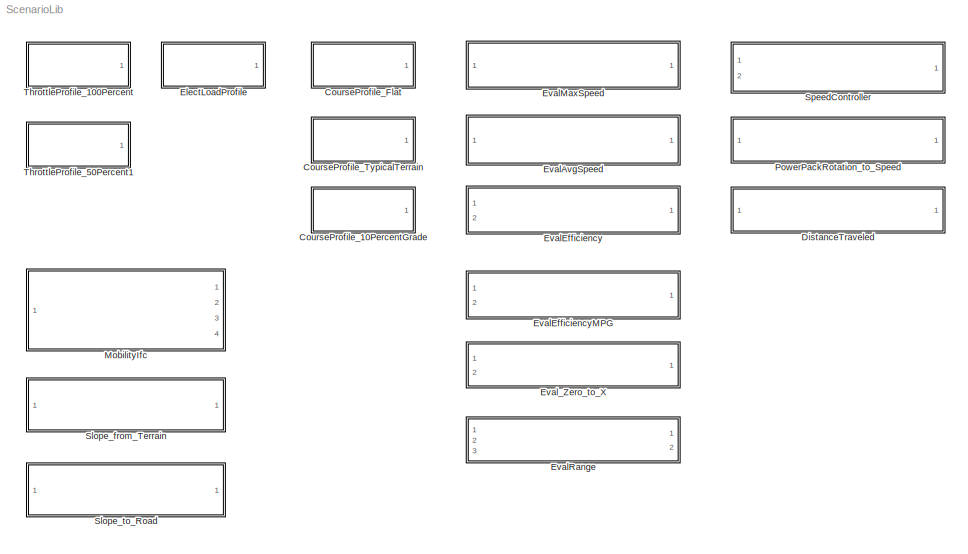
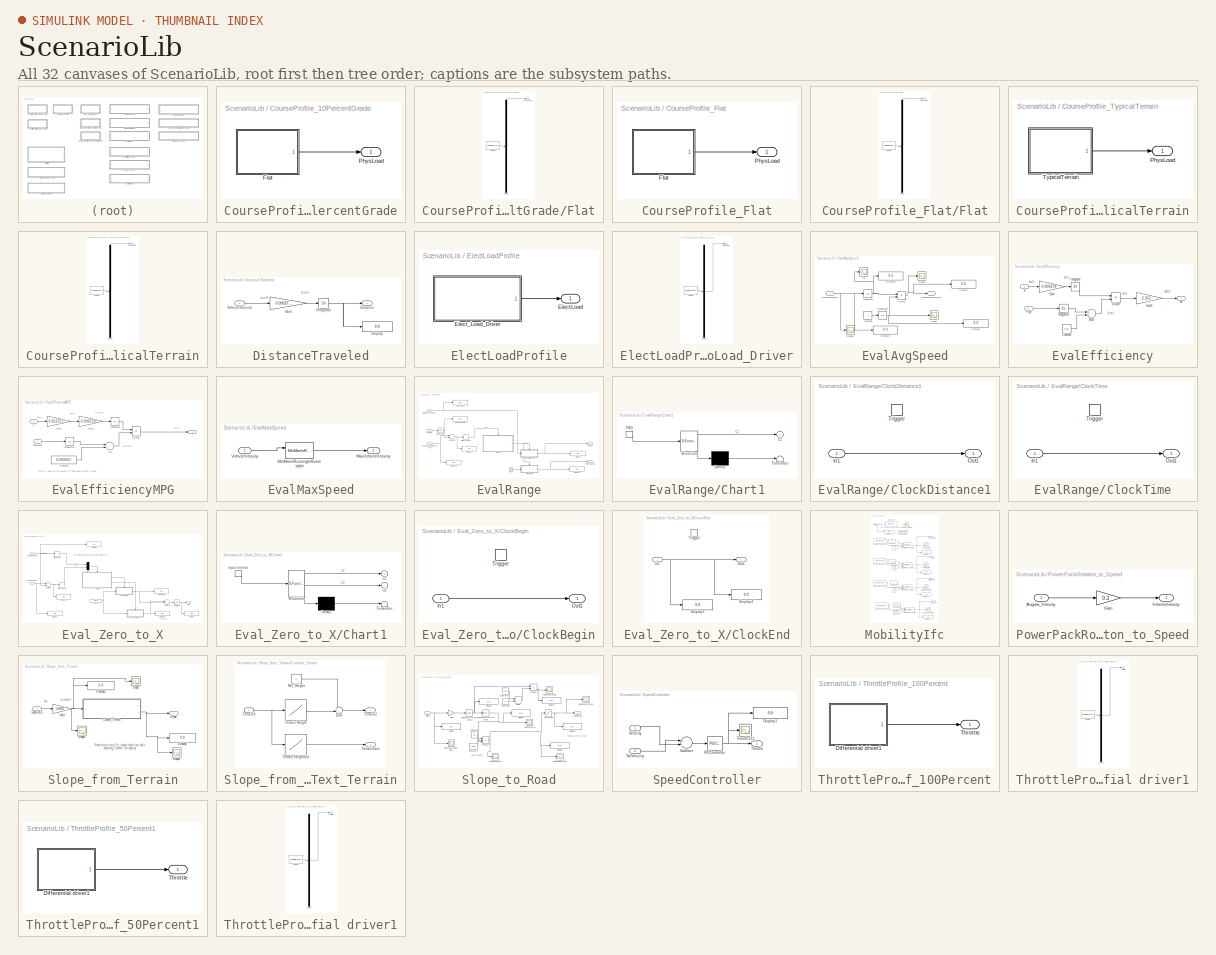
[diagram: thumbnail index - all 32 canvases of the model, root first then tree order]
MODEL ScenarioLib
KIND model
BLOCK [SubSystem] CourseProfile_10PercentGrade
  FunctionWithSeparateData = off
  MaskHideContents = off
  MinAlgLoopOccurrences = off
  Opaque = off
  Ports = [0, 1]
  PropExecContextOutsideSubsystem = off
  RTWSystemCode = Auto
  RequestExecContextInheritance = off
  SID = 457
BLOCK [SubSystem] CourseProfile_10PercentGrade/Flat
  ClipboardFcn = sigbuilder_block('clipboard');
  CloseFcn = sigbuilder_block('close');
  CopyFcn = sigbuilder_block('copy');
  DeleteFcn = sigbuilder_block('delete');
  FunctionWithSeparateData = off
  LoadFcn = sigbuilder_block('load');
  MaskCapabilities = slmaskedcaps(gcbh)
  MaskDescription = Create and generate interchangeable groups of signals whose waveforms are piecewise linear.
  MaskDisplay = plot(0,0,100,100,[10,10,40,40,10],[80,20,20,80,80],[40,10],[50,50], [40,27,10],[65,72,56],[40,25,25,10],[28,28,43,43]);
  MaskHideContents = on
  MaskIconFrame = on
  MaskIconOpaque = off
  MaskIconRotate = port
  MaskIconUnits = autoscale
  MaskInitialization = if ~strcmp(get_param(bdroot(gcbh),'SimulationStatus'),'stopped') tuvar = sigbuilder_block('maskInit'); end
  MaskPortRotate = default
  MaskSelfModifiable = on
  MaskType = Sigbuilder block
  MinAlgLoopOccurrences = off
  ModelCloseFcn = sigbuilder_block('modelClose');
  NameChangeFcn = sigbuilder_block('namechange');
  Opaque = off
  OpenFcn = sigbuilder_block('open',[62.6897 69.5172 970.759 504 ]);
  Ports = [0, 1]
  PreSaveFcn = sigbuilder_block('preSave');
  PropExecContextOutsideSubsystem = off
  RTWSystemCode = Auto
  RequestExecContextInheritance = off
  SID = 458
  StartFcn = sigbuilder_block('start');
  StopFcn = sigbuilder_block('stop');
  Tag = STV Subsys
BLOCK [Demux] CourseProfile_10PercentGrade/Flat/Demux
  Outputs = 1
  Ports = [1, 1]
  SID = 458:1
  Tag = STV Demux
BLOCK [FromWorkspace] CourseProfile_10PercentGrade/Flat/FromWs
  SID = 458:2
  SampleTime = 0
  SigBuilderData = DataTag0
  Tag = STV FromWs
  VariableName = tuvar
  VnvData = DataTag1
  ZeroCross = on
BLOCK [Outport] CourseProfile_10PercentGrade/Flat/PhysLoad
  IconDisplay = Port number
  SID = 458:5
  Tag = STV Outport
BLOCK [Outport] CourseProfile_10PercentGrade/PhysLoad
  IconDisplay = Port number
  SID = 459
BLOCK [SubSystem] CourseProfile_Flat
  FunctionWithSeparateData = off
  MaskHideContents = off
  MinAlgLoopOccurrences = off
  Opaque = off
  Ports = [0, 1]
  PropExecContextOutsideSubsystem = off
  RTWSystemCode = Auto
  RequestExecContextInheritance = off
  SID = 71
BLOCK [SubSystem] CourseProfile_Flat/Flat
  ClipboardFcn = sigbuilder_block('clipboard');
  CloseFcn = sigbuilder_block('close');
  CopyFcn = sigbuilder_block('copy');
  DeleteFcn = sigbuilder_block('delete');
  FunctionWithSeparateData = off
  LoadFcn = sigbuilder_block('load');
  MaskCapabilities = slmaskedcaps(gcbh)
  MaskDescription = Create and generate interchangeable groups of signals whose waveforms are piecewise linear.
  MaskDisplay = plot(0,0,100,100,[10,10,40,40,10],[80,20,20,80,80],[40,10],[50,50], [40,27,10],[65,72,56],[40,25,25,10],[28,28,43,43]);
  MaskHideContents = on
  MaskIconFrame = on
  MaskIconOpaque = off
  MaskIconRotate = port
  MaskIconUnits = autoscale
  MaskInitialization = if ~strcmp(get_param(bdroot(gcbh),'SimulationStatus'),'stopped') tuvar = sigbuilder_block('maskInit'); end
  MaskPortRotate = default
  MaskSelfModifiable = on
  MaskType = Sigbuilder block
  MinAlgLoopOccurrences = off
  ModelCloseFcn = sigbuilder_block('modelClose');
  NameChangeFcn = sigbuilder_block('namechange');
  Opaque = off
  OpenFcn = sigbuilder_block('open',[62.6897 69.5172 970.759 504 ]);
  Ports = [0, 1]
  PreSaveFcn = sigbuilder_block('preSave');
  PropExecContextOutsideSubsystem = off
  RTWSystemCode = Auto
  RequestExecContextInheritance = off
  SID = 108
  StartFcn = sigbuilder_block('start');
  StopFcn = sigbuilder_block('stop');
  Tag = STV Subsys
BLOCK [Demux] CourseProfile_Flat/Flat/Demux
  Outputs = 1
  Ports = [1, 1]
  SID = 108:1
  Tag = STV Demux
BLOCK [FromWorkspace] CourseProfile_Flat/Flat/FromWs
  SID = 108:2
  SampleTime = 0
  SigBuilderData = DataTag2
  Tag = STV FromWs
  VariableName = tuvar
  VnvData = DataTag3
  ZeroCross = on
BLOCK [Outport] CourseProfile_Flat/Flat/PhysLoad
  IconDisplay = Port number
  SID = 108:5
  Tag = STV Outport
BLOCK [Outport] CourseProfile_Flat/PhysLoad
  IconDisplay = Port number
  SID = 75
BLOCK [SubSystem] CourseProfile_TypicalTerrain
  FunctionWithSeparateData = off
  MaskHideContents = off
  MinAlgLoopOccurrences = off
  Opaque = off
  Ports = [0, 1]
  PropExecContextOutsideSubsystem = off
  RTWSystemCode = Auto
  RequestExecContextInheritance = off
  SID = 89
BLOCK [Outport] CourseProfile_TypicalTerrain/PhysLoad
  IconDisplay = Port number
  SID = 91
BLOCK [SubSystem] CourseProfile_TypicalTerrain/TypicalTerrain
  ClipboardFcn = sigbuilder_block('clipboard');
  CloseFcn = sigbuilder_block('close');
  CopyFcn = sigbuilder_block('copy');
  DeleteFcn = sigbuilder_block('delete');
  FunctionWithSeparateData = off
  LoadFcn = sigbuilder_block('load');
  MaskCapabilities = slmaskedcaps(gcbh)
  MaskDescription = Create and generate interchangeable groups of signals whose waveforms are piecewise linear.
  MaskDisplay = plot(0,0,100,100,[10,10,40,40,10],[80,20,20,80,80],[40,10],[50,50], [40,27,10],[65,72,56],[40,25,25,10],[28,28,43,43]);
  MaskHideContents = on
  MaskIconFrame = on
  MaskIconOpaque = off
  MaskIconRotate = port
  MaskIconUnits = autoscale
  MaskInitialization = if ~strcmp(get_param(bdroot(gcbh),'SimulationStatus'),'stopped') tuvar = sigbuilder_block('maskInit'); end
  MaskPortRotate = default
  MaskSelfModifiable = on
  MaskType = Sigbuilder block
  MinAlgLoopOccurrences = off
  ModelCloseFcn = sigbuilder_block('modelClose');
  NameChangeFcn = sigbuilder_block('namechange');
  Opaque = off
  OpenFcn = sigbuilder_block('open',[164.483 27.3103 970.138 504 ]);
  Ports = [0, 1]
  PreSaveFcn = sigbuilder_block('preSave');
  PropExecContextOutsideSubsystem = off
  RTWSystemCode = Auto
  RequestExecContextInheritance = off
  SID = 107
  StartFcn = sigbuilder_block('start');
  StopFcn = sigbuilder_block('stop');
  Tag = STV Subsys
BLOCK [Demux] CourseProfile_TypicalTerrain/TypicalTerrain/Demux
  Outputs = 1
  Ports = [1, 1]
  SID = 107:1
  Tag = STV Demux
BLOCK [FromWorkspace] CourseProfile_TypicalTerrain/TypicalTerrain/FromWs
  SID = 107:2
  SampleTime = 0
  SigBuilderData = DataTag4
  Tag = STV FromWs
  VariableName = tuvar
  VnvData = DataTag5
  ZeroCross = on
BLOCK [Outport] CourseProfile_TypicalTerrain/TypicalTerrain/PhysLoad
  IconDisplay = Port number
  SID = 107:5
  Tag = STV Outport
BLOCK [SubSystem] DistanceTraveled
  FunctionWithSeparateData = off
  MaskHideContents = off
  MinAlgLoopOccurrences = off
  Opaque = off
  Ports = [1, 1]
  PropExecContextOutsideSubsystem = off
  RTWSystemCode = Auto
  RequestExecContextInheritance = off
  SID = 141
BLOCK [Display] DistanceTraveled/Display
  Decimation = 1
  Lockdown = off
  Ports = [1]
  SID = 151
BLOCK [Outport] DistanceTraveled/Distance
  IconDisplay = Port number
  SID = 156
BLOCK [Gain] DistanceTraveled/Gain
  Gain = 0.000277778
  OutDataTypeStr = Inherit: Inherit via internal rule
  ParamDataTypeStr = Inherit: Inherit via internal rule
  SID = 159
  SaturateOnIntegerOverflow = off
BLOCK [Integrator] DistanceTraveled/Integrator
  Ports = [1, 1]
  SID = 160
BLOCK [Inport] DistanceTraveled/VehicleVelocity
  IconDisplay = Port number
  SID = 142
BLOCK [SubSystem] ElectLoadProfile
  FunctionWithSeparateData = off
  MaskHideContents = off
  MinAlgLoopOccurrences = off
  Opaque = off
  Ports = [0, 1]
  PropExecContextOutsideSubsystem = off
  RTWSystemCode = Auto
  RequestExecContextInheritance = off
  SID = 81
BLOCK [Outport] ElectLoadProfile/ElectLoad
  IconDisplay = Port number
  SID = 83
BLOCK [SubSystem] ElectLoadProfile/Elect_Load_Driver
  ClipboardFcn = sigbuilder_block('clipboard');
  CloseFcn = sigbuilder_block('close');
  CopyFcn = sigbuilder_block('copy');
  DeleteFcn = sigbuilder_block('delete');
  FunctionWithSeparateData = off
  LoadFcn = sigbuilder_block('load');
  MaskCapabilities = slmaskedcaps(gcbh)
  MaskDescription = Create and generate interchangeable groups of signals whose waveforms are piecewise linear.
  MaskDisplay = plot(0,0,100,100,[10,10,40,40,10],[80,20,20,80,80],[40,10],[50,50], [40,27,10],[65,72,56],[40,25,25,10],[28,28,43,43]);
  MaskHideContents = on
  MaskIconFrame = on
  MaskIconOpaque = off
  MaskIconRotate = port
  MaskIconUnits = autoscale
  MaskInitialization = if ~strcmp(get_param(bdroot(gcbh),'SimulationStatus'),'stopped') tuvar = sigbuilder_block('maskInit'); end
  MaskPortRotate = default
  MaskSelfModifiable = on
  MaskType = Sigbuilder block
  MinAlgLoopOccurrences = off
  ModelCloseFcn = sigbuilder_block('modelClose');
  NameChangeFcn = sigbuilder_block('namechange');
  Opaque = off
  OpenFcn = sigbuilder_block('open',[164.483 24.8276 970.138 502.759 ]);
  Ports = [0, 1]
  PreSaveFcn = sigbuilder_block('preSave');
  PropExecContextOutsideSubsystem = off
  RTWSystemCode = Auto
  RequestExecContextInheritance = off
  SID = 82
  StartFcn = sigbuilder_block('start');
  StopFcn = sigbuilder_block('stop');
  Tag = STV Subsys
BLOCK [Demux] ElectLoadProfile/Elect_Load_Driver/Demux
  Outputs = 1
  Ports = [1, 1]
  SID = 82:1
  Tag = STV Demux
BLOCK [Outport] ElectLoadProfile/Elect_Load_Driver/Elect Load
  IconDisplay = Port number
  SID = 82:3
  Tag = STV Outport
BLOCK [FromWorkspace] ElectLoadProfile/Elect_Load_Driver/FromWs
  SID = 82:2
  SampleTime = 0
  SigBuilderData = DataTag6
  Tag = STV FromWs
  VariableName = tuvar
  VnvData = DataTag7
  ZeroCross = on
BLOCK [SubSystem] EvalAvgSpeed
  FunctionWithSeparateData = off
  MaskHideContents = off
  MinAlgLoopOccurrences = off
  Opaque = off
  Ports = [1, 1]
  PropExecContextOutsideSubsystem = off
  RTWSystemCode = Auto
  RequestExecContextInheritance = off
  SID = 8
BLOCK [Outport] EvalAvgSpeed/AvgVehicleVelocity
  IconDisplay = Port number
  SID = 22
BLOCK [Scope] EvalAvgSpeed/Const
  DataFormat = StructureWithTime
  Floating = off
  NumInputPorts = 1
  Ports = [1]
  SID = 10
  SampleTime = 0
  SaveName = ScopeData1
  YMax = 4250
  YMin = 250
BLOCK [Constant] EvalAvgSpeed/Constant
  SID = 11
BLOCK [Display] EvalAvgSpeed/Display
  Decimation = 1
  Lockdown = off
  Ports = [1]
  SID = 12
BLOCK [Display] EvalAvgSpeed/Display1
  Decimation = 1
  Lockdown = off
  Ports = [1]
  SID = 13
BLOCK [Display] EvalAvgSpeed/Display2
  Decimation = 1
  Lockdown = off
  Ports = [1]
  SID = 14
BLOCK [Display] EvalAvgSpeed/Display3
  Decimation = 1
  Lockdown = off
  Ports = [1]
  SID = 15
BLOCK [Product] EvalAvgSpeed/Divide
  InputSameDT = off
  Inputs = */
  OutDataTypeStr = Inherit: Inherit via internal rule
  Ports = [2, 1]
  RndMeth = Floor
  SID = 16
  SaturateOnIntegerOverflow = off
BLOCK [Integrator] EvalAvgSpeed/Integrator
  Ports = [1, 1]
  SID = 17
BLOCK [Integrator] EvalAvgSpeed/Integrator1
  InitialCondition = 0.001
  Ports = [1, 1]
  SID = 18
BLOCK [Scope] EvalAvgSpeed/Scope
  DataFormat = StructureWithTime
  Floating = off
  NumInputPorts = 1
  Ports = [1]
  SID = 19
  SampleTime = 0
  SaveName = ScopeData2
  YMax = 4250
  YMin = 250
BLOCK [Scope] EvalAvgSpeed/Scope1
  DataFormat = StructureWithTime
  Floating = off
  NumInputPorts = 1
  Ports = [1]
  SID = 20
  SampleTime = 0
  SaveName = ScopeData3
  YMax = 4250
  YMin = 250
BLOCK [Inport] EvalAvgSpeed/VehicleVelocity
  IconDisplay = Port number
  SID = 9
BLOCK [Scope] EvalAvgSpeed/int
  DataFormat = StructureWithTime
  Floating = off
  NumInputPorts = 1
  Ports = [1]
  SID = 21
  SampleTime = 0
  SaveName = ScopeData4
  YMax = 4250
  YMin = 250
BLOCK [SubSystem] EvalEfficiency
  FunctionWithSeparateData = off
  MaskHideContents = off
  MinAlgLoopOccurrences = off
  Opaque = off
  Ports = [2, 1]
  PropExecContextOutsideSubsystem = off
  RTWSystemCode = Auto
  RequestExecContextInheritance = off
  SID = 23
BLOCK [Outport] EvalEfficiency/A
  IconDisplay = Port number
  SID = 31
BLOCK [Sum] EvalEfficiency/Add
  InputSameDT = off
  OutDataTypeStr = Inherit: Inherit via internal rule
  Ports = [2, 1]
  SID = 26
  SaturateOnIntegerOverflow = off
BLOCK [Constant] EvalEfficiency/Constant
  SID = 27
  Value = 0.001
BLOCK [Product] EvalEfficiency/Divide
  InputSameDT = off
  Inputs = */
  OutDataTypeStr = Inherit: Inherit via internal rule
  Ports = [2, 1]
  RndMeth = Floor
  SID = 28
  SaturateOnIntegerOverflow = off
BLOCK [Inport] EvalEfficiency/Fuel
  IconDisplay = Port number
  SID = 24
BLOCK [Gain] EvalEfficiency/Gain
  Gain = 0.000278
  OutDataTypeStr = Inherit: Inherit via internal rule
  ParamDataTypeStr = Inherit: Inherit via internal rule
  SID = 93
  SaturateOnIntegerOverflow = off
BLOCK [Gain] EvalEfficiency/Gain1
  Gain = 2.352
  OutDataTypeStr = Inherit: Inherit via internal rule
  ParamDataTypeStr = Inherit: Inherit via internal rule
  SID = 94
  SaturateOnIntegerOverflow = off
BLOCK [Integrator] EvalEfficiency/Integrator
  Ports = [1, 1]
  SID = 29
BLOCK [Integrator] EvalEfficiency/Integrator1
  Ports = [1, 1]
  SID = 30
BLOCK [Inport] EvalEfficiency/w
  IconDisplay = Port number
  Port = 2
  SID = 25
BLOCK [SubSystem] EvalEfficiencyMPG
  FunctionWithSeparateData = off
  MaskHideContents = off
  MinAlgLoopOccurrences = off
  Opaque = off
  Ports = [2, 1]
  PropExecContextOutsideSubsystem = off
  RTWSystemCode = Auto
  RequestExecContextInheritance = off
  SID = 95
BLOCK [Outport] EvalEfficiencyMPG/A
  IconDisplay = Port number
  SID = 105
BLOCK [Sum] EvalEfficiencyMPG/Add
  InputSameDT = off
  OutDataTypeStr = Inherit: Inherit via internal rule
  Ports = [2, 1]
  SID = 98
  SaturateOnIntegerOverflow = off
BLOCK [Constant] EvalEfficiencyMPG/Constant
  SID = 99
  Value = 0.000001
BLOCK [Product] EvalEfficiencyMPG/Divide
  InputSameDT = off
  Inputs = */
  OutDataTypeStr = Inherit: Inherit via internal rule
  Ports = [2, 1]
  RndMeth = Floor
  SID = 100
  SaturateOnIntegerOverflow = off
BLOCK [Inport] EvalEfficiencyMPG/FuelLevel
  IconDisplay = Port number
  SID = 96
BLOCK [Gain] EvalEfficiencyMPG/Gain
  Gain = 0.621371
  OutDataTypeStr = Inherit: Inherit via internal rule
  ParamDataTypeStr = Inherit: Inherit via internal rule
  SID = 101
  SaturateOnIntegerOverflow = off
BLOCK [Gain] EvalEfficiencyMPG/Gain2
  Gain = 0.000278
  OutDataTypeStr = Inherit: Inherit via internal rule
  ParamDataTypeStr = Inherit: Inherit via internal rule
  SID = 106
  SaturateOnIntegerOverflow = off
BLOCK [Integrator] EvalEfficiencyMPG/Integrator
  Ports = [1, 1]
  SID = 103
BLOCK [Integrator] EvalEfficiencyMPG/Integrator1
  Ports = [1, 1]
  SID = 104
BLOCK [Inport] EvalEfficiencyMPG/w
  IconDisplay = Port number
  Port = 2
  SID = 97
BLOCK [SubSystem] EvalMaxSpeed
  FunctionWithSeparateData = off
  MaskHideContents = off
  MinAlgLoopOccurrences = off
  Opaque = off
  Ports = [1, 1]
  PropExecContextOutsideSubsystem = off
  RTWSystemCode = Auto
  RequestExecContextInheritance = off
  SID = 32
BLOCK [Outport] EvalMaxSpeed/MaxVehicleVelocity
  IconDisplay = Port number
  SID = 35
BLOCK [Reference] EvalMaxSpeed/MinMax\nRunning\nResettable  REF=simulink/Math\nOperations/MinMax\nRunning\nResettable
  Function = max
  Ports = [2, 1]
  SID = 109
  SourceBlock = simulink/Math\nOperations/MinMax\nRunning\nResettable
  SourceType = MinMax Running Resettable
  vinit = 0.0
BLOCK [Inport] EvalMaxSpeed/VehicleVelocity
  IconDisplay = Port number
  SID = 33
BLOCK [SubSystem] EvalRange
  FunctionWithSeparateData = off
  MaskHideContents = off
  MinAlgLoopOccurrences = off
  Opaque = off
  Ports = [3, 2]
  PropExecContextOutsideSubsystem = off
  RTWSystemCode = Auto
  RequestExecContextInheritance = off
  SID = 125
BLOCK [SubSystem] EvalRange/Chart1
  ErrorFcn = Stateflow.Translate.translate
  FunctionWithSeparateData = off
  MaskDescription = Stateflow diagram
  MaskDisplay = plot(sf('Private','sfblk','xIcon'),sf('Private','sfblk','yIcon'));text(0.5,0,sf('Private', 'sfblk', 'tIcon'),'HorizontalAl','Center','VerticalAl','Bottom');
  MaskHideContents = off
  MaskIconFrame = off
  MaskIconOpaque = off
  MaskIconRotate = none
  MaskIconUnits = autoscale
  MaskPortRotate = default
  MaskSelfModifiable = on
  MaskType = Stateflow
  MinAlgLoopOccurrences = off
  Opaque = off
  PermitHierarchicalResolution = ExplicitOnly
  Ports = [0, 1, 0, 1]
  PropExecContextOutsideSubsystem = off
  RTWSystemCode = Auto
  RequestExecContextInheritance = off
  SFBlockType = Chart
  SID = 421
  TreatAsAtomicUnit = on
BLOCK [Demux] EvalRange/Chart1/ Demux 
  Outputs = 1
  Ports = [1, 1]
  SID = 421::35
BLOCK [S-Function] EvalRange/Chart1/ SFunction 
  EnableBusSupport = off
  FunctionName = sf_sfun
  PortCounts = [1 2]
  Ports = [1, 2]
  SID = 421::34
  Tag = Stateflow S-Function ScenarioLib 1
BLOCK [Terminator] EvalRange/Chart1/ Terminator 
  SID = 421::37
BLOCK [Outport] EvalRange/Chart1/C1
  IconDisplay = Port number
  SID = 421::28
BLOCK [TriggerPort] EvalRange/Chart1/TRIG
  Ports = [0, 1]
  SID = 421::17
  ShowOutputPort = on
  StatesWhenEnabling = held
BLOCK [Clock] EvalRange/Clock
  SID = 186
BLOCK [SubSystem] EvalRange/ClockDistance1
  FunctionWithSeparateData = off
  MaskHideContents = off
  MinAlgLoopOccurrences = off
  Opaque = off
  Ports = [1, 1, 0, 1]
  PropExecContextOutsideSubsystem = off
  RTWSystemCode = Auto
  RequestExecContextInheritance = off
  SID = 129
  TreatAsAtomicUnit = on
BLOCK [Inport] EvalRange/ClockDistance1/In1
  IconDisplay = Port number
  SID = 130
BLOCK [Outport] EvalRange/ClockDistance1/Out1
  IconDisplay = Port number
  SID = 133
BLOCK [TriggerPort] EvalRange/ClockDistance1/Trigger
  Ports = []
  SID = 131
  StatesWhenEnabling = held
BLOCK [SubSystem] EvalRange/ClockTime
  FunctionWithSeparateData = off
  MaskHideContents = off
  MinAlgLoopOccurrences = off
  Opaque = off
  Ports = [1, 1, 0, 1]
  PropExecContextOutsideSubsystem = off
  RTWSystemCode = Auto
  RequestExecContextInheritance = off
  SID = 181
  TreatAsAtomicUnit = on
BLOCK [Inport] EvalRange/ClockTime/In1
  IconDisplay = Port number
  SID = 182
BLOCK [Outport] EvalRange/ClockTime/Out1
  IconDisplay = Port number
  SID = 185
BLOCK [TriggerPort] EvalRange/ClockTime/Trigger
  Ports = []
  SID = 183
  StatesWhenEnabling = held
BLOCK [Display] EvalRange/DISTANCE
  Decimation = 1
  Lockdown = off
  Ports = [1]
  SID = 428
BLOCK [Display] EvalRange/Display
  Decimation = 1
  Lockdown = off
  Ports = [1]
  SID = 134
BLOCK [Display] EvalRange/Display2
  Decimation = 1
  Lockdown = off
  Ports = [1]
  SID = 177
BLOCK [Display] EvalRange/Display3
  Decimation = 1
  Lockdown = off
  Ports = [1]
  SID = 178
BLOCK [Display] EvalRange/Display4
  Decimation = 1
  Lockdown = off
  Ports = [1]
  SID = 180
BLOCK [Inport] EvalRange/DistanceTraveled
  IconDisplay = Port number
  SID = 126
BLOCK [Display] EvalRange/FuelConsumed
  Decimation = 1
  Lockdown = off
  Ports = [1]
  SID = 171
BLOCK [Inport] EvalRange/FuelFlow
  IconDisplay = Port number
  Port = 2
  SID = 140
BLOCK [Inport] EvalRange/FuelLevelTriggerThresh
  IconDisplay = Port number
  Port = 3
  SID = 174
BLOCK [HitCross] EvalRange/Hit \nCrossing1
  HitCrossingDirection = falling
  Ports = [1, 1]
  SID = 175
  ZeroCross = off
BLOCK [Integrator] EvalRange/Integrator1
  Ports = [1, 1]
  SID = 429
BLOCK [Outport] EvalRange/Range
  IconDisplay = Port number
  SID = 139
BLOCK [Sum] EvalRange/Subtract
  InputSameDT = off
  Inputs = +-
  OutDataTypeStr = Inherit: Inherit via internal rule
  Ports = [2, 1]
  SID = 176
  SaturateOnIntegerOverflow = off
BLOCK [Outport] EvalRange/TimeToRange
  IconDisplay = Port number
  Port = 2
  SID = 179
BLOCK [SubSystem] Eval_Zero_to_X
  FunctionWithSeparateData = off
  MaskHideContents = off
  MinAlgLoopOccurrences = off
  Opaque = off
  Ports = [2, 1]
  PropExecContextOutsideSubsystem = off
  RTWSystemCode = Auto
  RequestExecContextInheritance = off
  SID = 110
BLOCK [Display] Eval_Zero_to_X/BeginTime
  Decimation = 1
  Lockdown = off
  Ports = [1]
  SID = 432
BLOCK [SubSystem] Eval_Zero_to_X/Chart1
  ErrorFcn = Stateflow.Translate.translate
  FunctionWithSeparateData = off
  MaskDescription = Stateflow diagram
  MaskDisplay = plot(sf('Private','sfblk','xIcon'),sf('Private','sfblk','yIcon'));text(0.5,0,sf('Private', 'sfblk', 'tIcon'),'HorizontalAl','Center','VerticalAl','Bottom');
  MaskHideContents = off
  MaskIconFrame = off
  MaskIconOpaque = off
  MaskIconRotate = none
  MaskIconUnits = autoscale
  MaskPortRotate = default
  MaskSelfModifiable = on
  MaskType = Stateflow
  MinAlgLoopOccurrences = off
  Opaque = off
  PermitHierarchicalResolution = ExplicitOnly
  Ports = [0, 2, 0, 1]
  PropExecContextOutsideSubsystem = off
  RTWSystemCode = Auto
  RequestExecContextInheritance = off
  SFBlockType = Chart
  SID = 433
  TreatAsAtomicUnit = on
BLOCK [Demux] Eval_Zero_to_X/Chart1/ Demux 
  Outputs = 1
  Ports = [1, 1]
  SID = 433::35
BLOCK [S-Function] Eval_Zero_to_X/Chart1/ SFunction 
  EnableBusSupport = off
  FunctionName = sf_sfun
  PortCounts = [1 3]
  Ports = [1, 3]
  SID = 433::34
  Tag = Stateflow S-Function ScenarioLib 4
BLOCK [Terminator] Eval_Zero_to_X/Chart1/ Terminator 
  SID = 433::37
BLOCK [TriggerPort] Eval_Zero_to_X/Chart1/ input events 
  Ports = [0, 1]
  SID = 433::17
  ShowOutputPort = on
  StatesWhenEnabling = held
BLOCK [Outport] Eval_Zero_to_X/Chart1/C1
  IconDisplay = Port number
  SID = 433::28
BLOCK [Outport] Eval_Zero_to_X/Chart1/C2
  IconDisplay = Port number
  Port = 2
  SID = 433::32
BLOCK [Clock] Eval_Zero_to_X/Clock2
  DisplayTime = on
  SID = 434
BLOCK [SubSystem] Eval_Zero_to_X/ClockBegin
  FunctionWithSeparateData = off
  MaskHideContents = off
  MinAlgLoopOccurrences = off
  Opaque = off
  Ports = [1, 1, 0, 1]
  PropExecContextOutsideSubsystem = off
  RTWSystemCode = Auto
  RequestExecContextInheritance = off
  SID = 435
  TreatAsAtomicUnit = on
BLOCK [Inport] Eval_Zero_to_X/ClockBegin/In1
  IconDisplay = Port number
  SID = 436
BLOCK [Outport] Eval_Zero_to_X/ClockBegin/Out1
  IconDisplay = Port number
  SID = 438
BLOCK [TriggerPort] Eval_Zero_to_X/ClockBegin/Trigger
  Ports = []
  SID = 437
  StatesWhenEnabling = held
  ZeroCross = off
BLOCK [SubSystem] Eval_Zero_to_X/ClockEnd
  FunctionWithSeparateData = off
  MaskHideContents = off
  MinAlgLoopOccurrences = off
  Opaque = off
  Ports = [1, 1, 0, 1]
  PropExecContextOutsideSubsystem = off
  RTWSystemCode = Auto
  RequestExecContextInheritance = off
  SID = 439
  TreatAsAtomicUnit = on
BLOCK [Display] Eval_Zero_to_X/ClockEnd/Display1
  Decimation = 1
  Lockdown = off
  Ports = [1]
  SID = 442
BLOCK [Display] Eval_Zero_to_X/ClockEnd/Display4
  Decimation = 1
  Lockdown = off
  Ports = [1]
  SID = 443
BLOCK [Inport] Eval_Zero_to_X/ClockEnd/In1
  IconDisplay = Port number
  SID = 440
BLOCK [Outport] Eval_Zero_to_X/ClockEnd/Out1
  IconDisplay = Port number
  SID = 444
BLOCK [TriggerPort] Eval_Zero_to_X/ClockEnd/Trigger
  Ports = []
  SID = 441
  StatesWhenEnabling = held
  ZeroCross = off
BLOCK [Display] Eval_Zero_to_X/Display
  Decimation = 1
  Lockdown = off
  Ports = [1]
  SID = 445
BLOCK [Display] Eval_Zero_to_X/Display1
  Decimation = 1
  Lockdown = off
  Ports = [1]
  SID = 446
BLOCK [Display] Eval_Zero_to_X/Display3
  Decimation = 1
  Lockdown = off
  Ports = [1]
  SID = 447
BLOCK [Display] Eval_Zero_to_X/Display6
  Decimation = 1
  Lockdown = off
  Ports = [1]
  SID = 448
BLOCK [HitCross] Eval_Zero_to_X/Hit \nCrossing
  HitCrossingDirection = rising
  HitCrossingOffset = 0.5
  Ports = [1, 1]
  SID = 449
BLOCK [HitCross] Eval_Zero_to_X/Hit \nCrossing2
  HitCrossingDirection = falling
  Ports = [1, 1]
  SID = 450
  ZeroCross = off
BLOCK [Mux] Eval_Zero_to_X/Mux
  DisplayOption = bar
  Inputs = 2
  Ports = [2, 1]
  SID = 451
BLOCK [Saturate] Eval_Zero_to_X/Saturation
  InputPortMap = u0
  LowerLimit = 0.0
  Ports = [1, 1]
  SID = 452
  UpperLimit = 10000000
  ZeroCross = off
BLOCK [Sum] Eval_Zero_to_X/Subtract
  InputSameDT = off
  Inputs = +-
  OutDataTypeStr = Inherit: Inherit via internal rule
  Ports = [2, 1]
  SID = 453
  SaturateOnIntegerOverflow = off
BLOCK [Sum] Eval_Zero_to_X/Subtract1
  InputSameDT = off
  Inputs = +-
  OutDataTypeStr = Inherit: Inherit via internal rule
  Ports = [2, 1]
  SID = 454
  SaturateOnIntegerOverflow = off
BLOCK [Outport] Eval_Zero_to_X/Time
  IconDisplay = Port number
  SID = 456
BLOCK [Inport] Eval_Zero_to_X/VehicleVelocity
  IconDisplay = Port number
  SID = 430
BLOCK [Display] Eval_Zero_to_X/Velocity
  Decimation = 1
  Lockdown = off
  Ports = [1]
  SID = 455
BLOCK [Inport] Eval_Zero_to_X/VelocityTarget
  IconDisplay = Port number
  Port = 2
  SID = 431
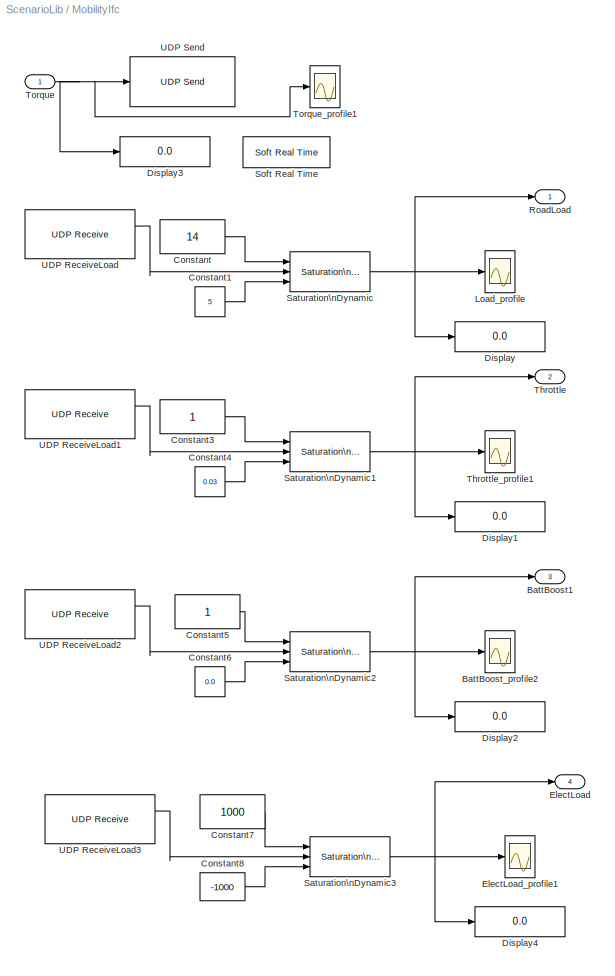
BLOCK [SubSystem] MobilityIfc
  FunctionWithSeparateData = off
  MaskHideContents = off
  MinAlgLoopOccurrences = off
  Opaque = off
  Ports = [1, 4]
  PropExecContextOutsideSubsystem = off
  RTWSystemCode = Auto
  RequestExecContextInheritance = off
  SID = 187
BLOCK [Outport] MobilityIfc/BattBoost1
  IconDisplay = Port number
  Port = 3
  SID = 220
BLOCK [Scope] MobilityIfc/BattBoost_profile2
  DataFormat = StructureWithTime
  Floating = off
  LimitDataPoints = off
  NumInputPorts = 1
  Ports = [1]
  SID = 189
  SampleTime = 0
  SaveName = ScopeData3
  TimeRange = 500
  YMax = 150000
  YMin = 0
BLOCK [Constant] MobilityIfc/Constant
  SID = 190
  Value = 14
BLOCK [Constant] MobilityIfc/Constant1
  SID = 191
  Value = 5
BLOCK [Constant] MobilityIfc/Constant3
  SID = 193
BLOCK [Constant] MobilityIfc/Constant4
  SID = 194
  Value = 0.03
BLOCK [Constant] MobilityIfc/Constant5
  SID = 195
BLOCK [Constant] MobilityIfc/Constant6
  SID = 196
  Value = 0.0
BLOCK [Constant] MobilityIfc/Constant7
  SID = 197
  Value = 1000
BLOCK [Constant] MobilityIfc/Constant8
  SID = 198
  Value = -1000
BLOCK [Display] MobilityIfc/Display
  Decimation = 1
  Lockdown = off
  Ports = [1]
  SID = 199
BLOCK [Display] MobilityIfc/Display1
  Decimation = 1
  Lockdown = off
  Ports = [1]
  SID = 200
BLOCK [Display] MobilityIfc/Display2
  Decimation = 1
  Lockdown = off
  Ports = [1]
  SID = 201
BLOCK [Display] MobilityIfc/Display3
  Decimation = 1
  Lockdown = off
  Ports = [1]
  SID = 202
BLOCK [Display] MobilityIfc/Display4
  Decimation = 1
  Lockdown = off
  Ports = [1]
  SID = 203
BLOCK [Outport] MobilityIfc/ElectLoad
  IconDisplay = Port number
  Port = 4
  SID = 221
BLOCK [Scope] MobilityIfc/ElectLoad_profile1
  DataFormat = StructureWithTime
  Floating = off
  LimitDataPoints = off
  NumInputPorts = 1
  Ports = [1]
  SID = 204
  SampleTime = 0
  SaveName = ScopeData5
  TimeRange = 500
  YMax = 150000
  YMin = 0
BLOCK [Scope] MobilityIfc/Load_profile
  DataFormat = StructureWithTime
  Floating = off
  LimitDataPoints = off
  NumInputPorts = 1
  Ports = [1]
  SID = 205
  SampleTime = 0
  TimeRange = 500
  YMax = 150000
  YMin = 0
BLOCK [Outport] MobilityIfc/RoadLoad
  IconDisplay = Port number
  SID = 218
BLOCK [Reference] MobilityIfc/Saturation\nDynamic  REF=simulink/Discontinuities/Saturation\nDynamic
  DoSatur = off
  LockScale = off
  OutDataType = fixdt(1, 16)
  OutDataTypeStr = Inherit: Same as second input
  OutMax = []
  OutMin = []
  OutScaling = 2^-10
  OutputDataTypeScalingMode = Same as second input
  Ports = [3, 1]
  RndMeth = Floor
  SID = 206
  SourceBlock = simulink/Discontinuities/Saturation\nDynamic
  SourceType = Saturation Dynamic
BLOCK [Reference] MobilityIfc/Saturation\nDynamic1  REF=simulink/Discontinuities/Saturation\nDynamic
  DoSatur = off
  LockScale = off
  OutDataType = fixdt(1, 16)
  OutDataTypeStr = Inherit: Same as second input
  OutMax = []
  OutMin = []
  OutScaling = 2^-10
  OutputDataTypeScalingMode = Same as second input
  Ports = [3, 1]
  RndMeth = Floor
  SID = 207
  SourceBlock = simulink/Discontinuities/Saturation\nDynamic
  SourceType = Saturation Dynamic
BLOCK [Reference] MobilityIfc/Saturation\nDynamic2  REF=simulink/Discontinuities/Saturation\nDynamic
  DoSatur = off
  LockScale = off
  OutDataType = fixdt(1, 16)
  OutDataTypeStr = Inherit: Same as second input
  OutMax = []
  OutMin = []
  OutScaling = 2^-10
  OutputDataTypeScalingMode = Same as second input
  Ports = [3, 1]
  RndMeth = Floor
  SID = 208
  SourceBlock = simulink/Discontinuities/Saturation\nDynamic
  SourceType = Saturation Dynamic
BLOCK [Reference] MobilityIfc/Saturation\nDynamic3  REF=simulink/Discontinuities/Saturation\nDynamic
  DoSatur = off
  LockScale = off
  OutDataType = fixdt(1, 16)
  OutDataTypeStr = Inherit: Same as second input
  OutMax = []
  OutMin = []
  OutScaling = 2^-10
  OutputDataTypeScalingMode = Same as second input
  Ports = [3, 1]
  RndMeth = Floor
  SID = 209
  SourceBlock = simulink/Discontinuities/Saturation\nDynamic
  SourceType = Saturation Dynamic
BLOCK [Reference] MobilityIfc/Soft Real Time  REF=utility/Soft Real Time  (lib defined in slx_8818c3a16fdf)
  Ports = []
  SID = 210
  SourceBlock = utility/Soft Real Time
  SourceType = Unknown
  x = 1
BLOCK [Outport] MobilityIfc/Throttle
  IconDisplay = Port number
  Port = 2
  SID = 219
BLOCK [Scope] MobilityIfc/Throttle_profile1
  DataFormat = StructureWithTime
  Floating = off
  LimitDataPoints = off
  NumInputPorts = 1
  Ports = [1]
  SID = 211
  SampleTime = 0
  SaveName = ScopeData1
  TimeRange = 500
  YMax = 150000
  YMin = 0
BLOCK [Inport] MobilityIfc/Torque
  IconDisplay = Port number
  SID = 188
BLOCK [Scope] MobilityIfc/Torque_profile1
  DataFormat = StructureWithTime
  Floating = off
  LimitDataPoints = off
  NumInputPorts = 1
  Ports = [1]
  SID = 212
  SampleTime = 0
  SaveName = ScopeData4
  TimeRange = 100
  YMax = 150000
  YMin = 0
BLOCK [Reference] MobilityIfc/UDP ReceiveLoad  REF=instrumentlib/UDP Receive
  ByteOrder = LittleEndian
  DataSize = [1 1]
  DataType = double
  EnableBlockingMode = off
  Host = localhost
  LocalPort = 8090
  Port = 9090
  Ports = [0, 2]
  SID = 213
  SampleTime = 0.08
  SourceBlock = instrumentlib/UDP Receive
  SourceType = UDP Receive
  Timeout = 10
BLOCK [Reference] MobilityIfc/UDP ReceiveLoad1  REF=instrumentlib/UDP Receive
  ByteOrder = LittleEndian
  DataSize = [1 1]
  DataType = double
  EnableBlockingMode = off
  Host = localhost
  LocalPort = 8092
  Port = 9090
  Ports = [0, 2]
  SID = 214
  SampleTime = 0.08
  SourceBlock = instrumentlib/UDP Receive
  SourceType = UDP Receive
  Timeout = 10
BLOCK [Reference] MobilityIfc/UDP ReceiveLoad2  REF=instrumentlib/UDP Receive
  ByteOrder = LittleEndian
  DataSize = [1 1]
  DataType = double
  EnableBlockingMode = off
  Host = localhost
  LocalPort = 8093
  Port = 9090
  Ports = [0, 2]
  SID = 215
  SampleTime = 0.08
  SourceBlock = instrumentlib/UDP Receive
  SourceType = UDP Receive
  Timeout = 10
BLOCK [Reference] MobilityIfc/UDP ReceiveLoad3  REF=instrumentlib/UDP Receive
  ByteOrder = LittleEndian
  DataSize = [1 1]
  DataType = double
  EnableBlockingMode = off
  Host = localhost
  LocalPort = 8098
  Port = 9090
  Ports = [0, 2]
  SID = 216
  SampleTime = 0.08
  SourceBlock = instrumentlib/UDP Receive
  SourceType = UDP Receive
  Timeout = 10
BLOCK [Reference] MobilityIfc/UDP Send  REF=dspnetwork/UDP Send
  Ports = [1]
  SID = 217
  SourceBlock = dspnetwork/UDP Send
  SourceType = UDP Send
  localPort = -1
  localPortSource = Automatically determine
  localURL = '0.0.0.0'
  remotePort = 8094
  remoteURL = '127.0.0.1'
  sampletime = -1
  separateLengthPort = 0
BLOCK [SubSystem] PowerPackRotation_to_Speed
  FunctionWithSeparateData = off
  MaskHideContents = off
  MinAlgLoopOccurrences = off
  Opaque = off
  Ports = [1, 1]
  PropExecContextOutsideSubsystem = off
  RTWSystemCode = Auto
  RequestExecContextInheritance = off
  SID = 46
BLOCK [Inport] PowerPackRotation_to_Speed/Angular_Velocity
  IconDisplay = Port number
  SID = 47
BLOCK [Gain] PowerPackRotation_to_Speed/Gain
  Gain = 0.3
  OutDataTypeStr = Inherit: Inherit via internal rule
  ParamDataTypeStr = Inherit: Inherit via internal rule
  SID = 48
  SaturateOnIntegerOverflow = off
BLOCK [Outport] PowerPackRotation_to_Speed/VehicleVelocity
  IconDisplay = Port number
  SID = 49
BLOCK [SubSystem] Slope_from_Terrain
  FunctionWithSeparateData = off
  MaskHideContents = off
  MinAlgLoopOccurrences = off
  Opaque = off
  Ports = [1, 1]
  PropExecContextOutsideSubsystem = off
  RTWSystemCode = Auto
  RequestExecContextInheritance = off
  SID = 460
BLOCK [SubSystem] Slope_from_Terrain/Context_Terrain
  FunctionWithSeparateData = off
  MaskCallbackString = ThisBlock = gcb;\nUse_Old_Terrain = get_param(ThisBlock, 'Use_Old_Terrain');\nTerrainFilename = get_param(ThisBlock, 'TerrainFilename');\n% file must exist for terrain use\nif strcmp(Use_Old_Terrain,'on')\n    if ~exist(TerrainFilename, 'file')\n        msgbox(['Terrain filename: ', TerrainFilename, ...\n            ' does not exist. Setting \"Use Existing ', ...\n            'Terrain\" checkbox t...<+3175ch>
  MaskDescription = Generates a sample terrain from a Probability Density Function fit of US CONUS DEM data. The DEM data was sampled at 90 meter increments, consequently the data establishes long wavelength changes in slope suitable for the study of gross elevation changes on a system design.
  MaskEnableString = on,on,on,on,on,on,on
  MaskHelp = <copyright redacted>\nDeveloped with the sponsorship of the Defense Advanced Research Projects Agency (DARPA).\n\nPermission is hereby granted, free of charge, to any person obtaining a copy of this data,\nincluding any software or models in source or binary form, as well as any drawings,\nspecifications, and documentation (collectively \"the Data\"), to deal in the Data without restri...<+871ch>
  MaskHideContents = off
  MaskIconFrame = on
  MaskIconOpaque = on
  MaskIconRotate = none
  MaskIconUnits = autoscale
  MaskInitialization = ThisBlock = gcb;\n% verify the existence of terrain file\nif and(strcmp(Use_Old_Terrain, 'off'), ...\n        ~exist(TerrainFilename, 'file'))\n    msgbox(['Terrain filename: ', TerrainFilename, ...\n        ' does not exist. Setting \"Use Existing ', ...\n        'Terrain\" checkbox to create new instance', ...\n        '.  Remember to un-check it after this run.']);\n    set_param(ThisBlock, 'Us...<+1475ch>
  MaskPortRotate = default
  MaskPromptString = Terrain Filename|Use Existing Terrain|Initial Terrain Height|Query with Distance Traveled|Height_Output|Slope_Output|Desired Terrain Length
  MaskStyleString = edit,checkbox,edit,checkbox,checkbox,checkbox,edit
  MaskTabNameString = Primary,Primary,Primary,Set-up,Set-up,Set-up,Set-up
  MaskToolTipString = on,on,on,on,on,on,on
  MaskTunableValueString = off,off,off,off,off,off,off
  MaskType = Context Model Terrain for Fuel Efficiency
  MaskValueString = terrain.txt|off|0|off|on|on|20000
  MaskVariables = TerrainFilename=&1;Use_Old_Terrain=@2;Input0_Height=@3;Input_QueryDist=@4;Output_Height_CkBx=@5;Output_Slope_CkBx=@6;TerrainLength=@7;
  MaskVisibilityString = on,on,on,on,on,on,on
  MinAlgLoopOccurrences = off
  Opaque = off
  Ports = [1, 2]
  PropExecContextOutsideSubsystem = off
  RTWSystemCode = Auto
  RequestExecContextInheritance = off
  SID = 462
BLOCK [Constant] Slope_from_Terrain/Context_Terrain/Ref_Height
  SID = 464
  Value = 0
BLOCK [Sum] Slope_from_Terrain/Context_Terrain/Sum
  IconShape = round
  InputSameDT = off
  Inputs = ++|
  OutDataTypeStr = Inherit: Inherit via internal rule
  Ports = [2, 1]
  SID = 465
  SaturateOnIntegerOverflow = off
BLOCK [Lookup] Slope_from_Terrain/Context_Terrain/Terrain Height
  InputValues = [0     92    184    276    368    460    552    644    736    828    920   1012   1104   1196   1288   1380   1472   1564   1656   1748   1840   1932   2024   2116   2208   2300   2392   2484   2576   2668   2760   2852   2944   3036   3128   3220   3312   3404   3496   3588   3680   3772   3864   3956   4048   4140   4232   4324   4416   4508   4600   4692   4784   4876   4968   5060   5152   524...<+1122ch>
  LookUpMeth = Interpolation-Use End Values
  SID = 466
  SaturateOnIntegerOverflow = off
  Table = [0     -9.314944     -5.562551     -1.156475       9.23678      3.717174     -7.659609     -5.137529      11.27193      6.507215      4.459013      9.575071      6.014597      2.910176      19.94266      14.35199       17.6497      25.43216      14.65231      9.530139      10.71504     -5.756384       -10.602     -20.27741     -14.00759     -11.50117     -4.690092     -8.331273       4.80455      ...<+2641ch>
BLOCK [Lookup] Slope_from_Terrain/Context_Terrain/Terrain Heightdot
  InputValues = [0     92    184    276    368    460    552    644    736    828    920   1012   1104   1196   1288   1380   1472   1564   1656   1748   1840   1932   2024   2116   2208   2300   2392   2484   2576   2668   2760   2852   2944   3036   3128   3220   3312   3404   3496   3588   3680   3772   3864   3956   4048   4140   4232   4324   4416   4508   4600   4692   4784   4876   4968   5060   5152   524...<+1122ch>
  LookUpMeth = Use Input Below
  SID = 467
  SaturateOnIntegerOverflow = off
  Table = [-0.10125    0.040787    0.047892     0.11297   -0.059996    -0.12366    0.027414     0.17836    -0.05179   -0.022263    0.055609   -0.038701   -0.033744     0.18514   -0.060768    0.035845    0.084592    -0.11717   -0.055676    0.012879    -0.17904    -0.05267    -0.10517     0.06815    0.027244    0.074033   -0.039578     0.14278     0.10371   -0.069448    -0.11231     0.10987    0.082798     0....<+2204ch>
BLOCK [Inport] Slope_from_Terrain/Context_Terrain/TerrainX
  IconDisplay = Port number
  SID = 463
BLOCK [Outport] Slope_from_Terrain/Context_Terrain/TerrainZ
  IconDisplay = Port number
  SID = 468
BLOCK [Outport] Slope_from_Terrain/Context_Terrain/TerrainZdot
  IconDisplay = Port number
  Port = 2
  SID = 469
BLOCK [Display] Slope_from_Terrain/Display
  Decimation = 1
  Lockdown = off
  Ports = [1]
  SID = 470
BLOCK [Display] Slope_from_Terrain/Display2
  Decimation = 1
  Lockdown = off
  Ports = [1]
  SID = 471
BLOCK [Gain] Slope_from_Terrain/Gain
  Gain = 1000
  OutDataTypeStr = Inherit: Inherit via internal rule
  ParamDataTypeStr = Inherit: Inherit via internal rule
  SID = 472
  SaturateOnIntegerOverflow = off
BLOCK [Inport] Slope_from_Terrain/Location_X
  IconDisplay = Port number
  SID = 461
BLOCK [Scope] Slope_from_Terrain/Scope
  DataFormat = StructureWithTime
  Floating = off
  NumInputPorts = 1
  Ports = [1]
  SID = 473
  SampleTime = 0
  SaveName = ScopeData12
BLOCK [Scope] Slope_from_Terrain/Scope1
  DataFormat = StructureWithTime
  Floating = off
  NumInputPorts = 1
  Ports = [1]
  SID = 474
  SampleTime = 0
  SaveName = ScopeData13
BLOCK [Scope] Slope_from_Terrain/Scope2
  DataFormat = StructureWithTime
  Floating = off
  NumInputPorts = 1
  Ports = [1]
  SID = 475
  SampleTime = 0
  SaveName = ScopeData14
BLOCK [Outport] Slope_from_Terrain/Slope
  IconDisplay = Port number
  SID = 476
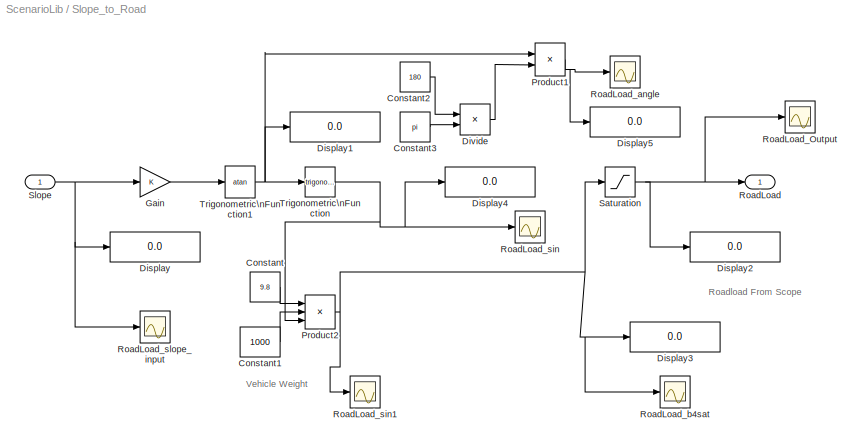
BLOCK [SubSystem] Slope_to_Road
  FunctionWithSeparateData = off
  MaskHideContents = off
  MinAlgLoopOccurrences = off
  Opaque = off
  Ports = [1, 1]
  PropExecContextOutsideSubsystem = off
  RTWSystemCode = Auto
  RequestExecContextInheritance = off
  SID = 477
BLOCK [Constant] Slope_to_Road/Constant
  SID = 479
  Value = 9.8
BLOCK [Constant] Slope_to_Road/Constant1
  SID = 480
  Value = 1000
BLOCK [Constant] Slope_to_Road/Constant2
  SID = 481
  Value = 180
BLOCK [Constant] Slope_to_Road/Constant3
  SID = 482
  Value = pi
BLOCK [Display] Slope_to_Road/Display
  Decimation = 1
  Lockdown = off
  Ports = [1]
  SID = 483
BLOCK [Display] Slope_to_Road/Display1
  Decimation = 1
  Lockdown = off
  Ports = [1]
  SID = 484
BLOCK [Display] Slope_to_Road/Display2
  Decimation = 1
  Lockdown = off
  Ports = [1]
  SID = 485
BLOCK [Display] Slope_to_Road/Display3
  Decimation = 1
  Lockdown = off
  Ports = [1]
  SID = 486
BLOCK [Display] Slope_to_Road/Display4
  Decimation = 1
  Lockdown = off
  Ports = [1]
  SID = 487
BLOCK [Display] Slope_to_Road/Display5
  Decimation = 1
  Lockdown = off
  Ports = [1]
  SID = 488
BLOCK [Product] Slope_to_Road/Divide
  InputSameDT = off
  Inputs = */
  OutDataTypeStr = Inherit: Inherit via internal rule
  Ports = [2, 1]
  RndMeth = Floor
  SID = 489
  SaturateOnIntegerOverflow = off
BLOCK [Gain] Slope_to_Road/Gain
  OutDataTypeStr = Inherit: Inherit via internal rule
  ParamDataTypeStr = Inherit: Inherit via internal rule
  SID = 490
  SaturateOnIntegerOverflow = off
BLOCK [Product] Slope_to_Road/Product1
  InputSameDT = off
  OutDataTypeStr = Inherit: Inherit via internal rule
  Ports = [2, 1]
  SID = 491
  SaturateOnIntegerOverflow = off
BLOCK [Product] Slope_to_Road/Product2
  InputSameDT = off
  Inputs = 3
  OutDataTypeStr = Inherit: Inherit via internal rule
  Ports = [3, 1]
  SID = 492
  SaturateOnIntegerOverflow = off
BLOCK [Outport] Slope_to_Road/RoadLoad
  IconDisplay = Port number
  SID = 502
BLOCK [Scope] Slope_to_Road/RoadLoad_Output
  DataFormat = StructureWithTime
  Floating = off
  NumInputPorts = 1
  Ports = [1]
  SID = 493
  SampleTime = 0
  SaveName = ScopeData7
  YMax = 4250
  YMin = 250
BLOCK [Scope] Slope_to_Road/RoadLoad_angle
  DataFormat = StructureWithTime
  Floating = off
  NumInputPorts = 1
  Ports = [1]
  SID = 494
  SampleTime = 0
  SaveName = ScopeData8
  YMax = 4250
  YMin = 250
BLOCK [Scope] Slope_to_Road/RoadLoad_b4sat
  DataFormat = StructureWithTime
  Floating = off
  NumInputPorts = 1
  Ports = [1]
  SID = 495
  SampleTime = 0
  SaveName = ScopeData6
  YMax = 4250
  YMin = 250
BLOCK [Scope] Slope_to_Road/RoadLoad_sin
  DataFormat = StructureWithTime
  Floating = off
  NumInputPorts = 1
  Ports = [1]
  SID = 496
  SampleTime = 0
  SaveName = ScopeData9
  YMax = 4250
  YMin = 250
BLOCK [Scope] Slope_to_Road/RoadLoad_sin1
  DataFormat = StructureWithTime
  Floating = off
  NumInputPorts = 1
  Ports = [1]
  SID = 497
  SampleTime = 0
  SaveName = ScopeData10
  YMax = 4250
  YMin = 250
BLOCK [Scope] Slope_to_Road/RoadLoad_slope_input
  DataFormat = StructureWithTime
  Floating = off
  NumInputPorts = 1
  Ports = [1]
  SID = 498
  SampleTime = 0
  SaveName = ScopeData11
  YMax = 4250
  YMin = 250
BLOCK [Saturate] Slope_to_Road/Saturation
  InputPortMap = u0
  LowerLimit = 0
  Ports = [1, 1]
  SID = 499
  UpperLimit = 20000
BLOCK [Inport] Slope_to_Road/Slope
  IconDisplay = Port number
  SID = 478
BLOCK [Trigonometry] Slope_to_Road/Trigonometric\nFunction
  Ports = [1, 1]
  SID = 500
BLOCK [Trigonometry] Slope_to_Road/Trigonometric\nFunction1
  Operator = atan
  Ports = [1, 1]
  SID = 501
BLOCK [SubSystem] SpeedController
  FunctionWithSeparateData = off
  MaskHideContents = off
  MinAlgLoopOccurrences = off
  Opaque = off
  Ports = [2, 1]
  PropExecContextOutsideSubsystem = off
  RTWSystemCode = Auto
  RequestExecContextInheritance = off
  SID = 50
BLOCK [Display] SpeedController/Display1
  Decimation = 1
  Lockdown = off
  Ports = [1]
  SID = 53
BLOCK [Reference] SpeedController/PID Controller  REF=simulink/Continuous/PID Controller
  AntiWindupMode = clamping
  Controller = PI
  D = 0
  DOutDataTypeStr = Inherit: Inherit via internal rule
  DOutMax = []
  DOutMin = []
  DParamDataTypeStr = Inherit: Inherit via internal rule
  DParamMax = []
  DParamMin = []
  ExternalReset = none
  FilterContinuousStateAttributes = ''
  FilterMethod = Forward Euler
  FilterOutDataTypeStr = Inherit: Inherit via internal rule
  FilterOutMax = []
  FilterOutMin = []
  FilterRTWStateStorageClass = Auto
  FilterStateMustResolveToSignalObject = off
  Form = Parallel
  I = 0.1
  IOutDataTypeStr = Inherit: Inherit via internal rule
  IOutMax = []
  IOutMin = []
  IParamDataTypeStr = Inherit: Inherit via internal rule
  IParamMax = []
  IParamMin = []
  IgnoreLimit = off
  InitialConditionForFilter = 0
  InitialConditionForIntegrator = 0
  InitialConditionSource = internal
  IntegratorContinuousStateAttributes = ''
  IntegratorMethod = Forward Euler
  IntegratorOutDataTypeStr = Inherit: Inherit via internal rule
  IntegratorOutMax = []
  IntegratorOutMin = []
  IntegratorRTWStateStorageClass = Auto
  IntegratorStateMustResolveToSignalObject = off
  Kb = 1
  KbOutDataTypeStr = Inherit: Inherit via internal rule
  KbOutMax = []
  KbOutMin = []
  KbParamDataTypeStr = Inherit: Inherit via internal rule
  KbParamMax = []
  KbParamMin = []
  Kt = 1
  KtOutDataTypeStr = Inherit: Inherit via internal rule
  KtOutMax = []
  KtOutMin = []
  KtParamDataTypeStr = Inherit: Inherit via internal rule
  KtParamMax = []
  KtParamMin = []
  LimitOutput = on
  LinearizeAsGain = off
  LockScale = off
  LowerSaturationLimit = 0
  N = 100
  NOutDataTypeStr = Inherit: Inherit via internal rule
  NOutMax = []
  NOutMin = []
  NParamDataTypeStr = Inherit: Inherit via internal rule
  NParamMax = []
  NParamMin = []
  P = 0.01
  POutDataTypeStr = Inherit: Inherit via internal rule
  POutMax = []
  POutMin = []
  PParamDataTypeStr = Inherit: Inherit via internal rule
  PParamMax = []
  PParamMin = []
  Ports = [1, 1]
  RndMeth = Floor
  SID = 54
  SampleTime = 1
  SaturateOnIntegerOverflow = off
  SaturationOutDataTypeStr = Inherit: Same as input
  SaturationOutMax = []
  SaturationOutMin = []
  SourceBlock = simulink/Continuous/PID Controller
  SourceType = PID 1dof
  SumAccumDataTypeStr = Inherit: Inherit via internal rule
  SumDAccumDataTypeStr = Inherit: Inherit via internal rule
  SumDOutDataTypeStr = Inherit: Inherit via internal rule
  SumDOutMax = []
  SumDOutMin = []
  SumI1AccumDataTypeStr = Inherit: Inherit via internal rule
  SumI1OutDataTypeStr = Inherit: Inherit via internal rule
  SumI1OutMax = []
  SumI1OutMin = []
  SumI2AccumDataTypeStr = Inherit: Inherit via internal rule
  SumI2OutDataTypeStr = Inherit: Inherit via internal rule
  SumI2OutMax = []
  SumI2OutMin = []
  SumI3AccumDataTypeStr = Inherit: Inherit via internal rule
  SumI3OutDataTypeStr = Inherit: Inherit via internal rule
  SumI3OutMax = []
  SumI3OutMin = []
  SumOutDataTypeStr = Inherit: Inherit via internal rule
  SumOutMax = []
  SumOutMin = []
  TimeDomain = Continuous-time
  TrackingMode = off
  UpperSaturationLimit = 1
  ZeroCross = on
BLOCK [Inport] SpeedController/SetVelocity
  IconDisplay = Port number
  Port = 2
  SID = 52
BLOCK [Sum] SpeedController/Subtract
  InputSameDT = off
  Inputs = +-
  OutDataTypeStr = Inherit: Inherit via internal rule
  Ports = [2, 1]
  SID = 55
  SaturateOnIntegerOverflow = off
BLOCK [Outport] SpeedController/Throttle
  IconDisplay = Port number
  SID = 57
BLOCK [Scope] SpeedController/Throttle111
  DataFormat = StructureWithTime
  Floating = off
  NumInputPorts = 1
  Ports = [1]
  SID = 56
  SampleTime = 0
  TimeRange = 100
  YMax = 8
  YMin = -3
BLOCK [Inport] SpeedController/Velocity
  IconDisplay = Port number
  SID = 51
BLOCK [SubSystem] ThrottleProfile_100Percent
  FunctionWithSeparateData = off
  MaskHideContents = off
  MinAlgLoopOccurrences = off
  Opaque = off
  Ports = [0, 1]
  PropExecContextOutsideSubsystem = off
  RTWSystemCode = Auto
  RequestExecContextInheritance = off
  SID = 76
BLOCK [SubSystem] ThrottleProfile_100Percent/Differential driver1
  ClipboardFcn = sigbuilder_block('clipboard');
  CloseFcn = sigbuilder_block('close');
  CopyFcn = sigbuilder_block('copy');
  DeleteFcn = sigbuilder_block('delete');
  FunctionWithSeparateData = off
  LoadFcn = sigbuilder_block('load');
  MaskCapabilities = slmaskedcaps(gcbh)
  MaskDescription = Create and generate interchangeable groups of signals whose waveforms are piecewise linear.
  MaskDisplay = plot(0,0,100,100,[10,10,40,40,10],[80,20,20,80,80],[40,10],[50,50], [40,27,10],[65,72,56],[40,25,25,10],[28,28,43,43]);
  MaskHideContents = on
  MaskIconFrame = on
  MaskIconOpaque = off
  MaskIconRotate = port
  MaskIconUnits = autoscale
  MaskInitialization = if ~strcmp(get_param(bdroot(gcbh),'SimulationStatus'),'stopped') tuvar = sigbuilder_block('maskInit'); end
  MaskPortRotate = default
  MaskSelfModifiable = on
  MaskType = Sigbuilder block
  MinAlgLoopOccurrences = off
  ModelCloseFcn = sigbuilder_block('modelClose');
  NameChangeFcn = sigbuilder_block('namechange');
  Opaque = off
  OpenFcn = sigbuilder_block('open',[164.483 24.2069 970.138 502.759 ]);
  Ports = [0, 1]
  PreSaveFcn = sigbuilder_block('preSave');
  PropExecContextOutsideSubsystem = off
  RTWSystemCode = Auto
  RequestExecContextInheritance = off
  SID = 77
  StartFcn = sigbuilder_block('start');
  StopFcn = sigbuilder_block('stop');
  Tag = STV Subsys
BLOCK [Demux] ThrottleProfile_100Percent/Differential driver1/Demux
  Outputs = 1
  Ports = [1, 1]
  SID = 77:1
  Tag = STV Demux
BLOCK [FromWorkspace] ThrottleProfile_100Percent/Differential driver1/FromWs
  SID = 77:2
  SampleTime = 0
  SigBuilderData = DataTag8
  Tag = STV FromWs
  VariableName = tuvar
  VnvData = DataTag9
  ZeroCross = on
BLOCK [Outport] ThrottleProfile_100Percent/Differential driver1/Throttle
  IconDisplay = Port number
  SID = 77:3
  Tag = STV Outport
BLOCK [Outport] ThrottleProfile_100Percent/Throttle
  IconDisplay = Port number
  SID = 78
BLOCK [SubSystem] ThrottleProfile_50Percent1
  FunctionWithSeparateData = off
  MaskHideContents = off
  MinAlgLoopOccurrences = off
  Opaque = off
  Ports = [0, 1]
  PropExecContextOutsideSubsystem = off
  RTWSystemCode = Auto
  RequestExecContextInheritance = off
  SID = 86
BLOCK [SubSystem] ThrottleProfile_50Percent1/Differential driver1
  ClipboardFcn = sigbuilder_block('clipboard');
  CloseFcn = sigbuilder_block('close');
  CopyFcn = sigbuilder_block('copy');
  DeleteFcn = sigbuilder_block('delete');
  FunctionWithSeparateData = off
  LoadFcn = sigbuilder_block('load');
  MaskCapabilities = slmaskedcaps(gcbh)
  MaskDescription = Create and generate interchangeable groups of signals whose waveforms are piecewise linear.
  MaskDisplay = plot(0,0,100,100,[10,10,40,40,10],[80,20,20,80,80],[40,10],[50,50], [40,27,10],[65,72,56],[40,25,25,10],[28,28,43,43]);
  MaskHideContents = on
  MaskIconFrame = on
  MaskIconOpaque = off
  MaskIconRotate = port
  MaskIconUnits = autoscale
  MaskInitialization = if ~strcmp(get_param(bdroot(gcbh),'SimulationStatus'),'stopped') tuvar = sigbuilder_block('maskInit'); end
  MaskPortRotate = default
  MaskSelfModifiable = on
  MaskType = Sigbuilder block
  MinAlgLoopOccurrences = off
  ModelCloseFcn = sigbuilder_block('modelClose');
  NameChangeFcn = sigbuilder_block('namechange');
  Opaque = off
  OpenFcn = sigbuilder_block('open',[164.483 25.4483 970.138 502.759 ]);
  Ports = [0, 1]
  PreSaveFcn = sigbuilder_block('preSave');
  PropExecContextOutsideSubsystem = off
  RTWSystemCode = Auto
  RequestExecContextInheritance = off
  SID = 87
  StartFcn = sigbuilder_block('start');
  StopFcn = sigbuilder_block('stop');
  Tag = STV Subsys
BLOCK [Demux] ThrottleProfile_50Percent1/Differential driver1/Demux
  Outputs = 1
  Ports = [1, 1]
  SID = 87:1
  Tag = STV Demux
BLOCK [FromWorkspace] ThrottleProfile_50Percent1/Differential driver1/FromWs
  SID = 87:2
  SampleTime = 0
  SigBuilderData = DataTag10
  Tag = STV FromWs
  VariableName = tuvar
  VnvData = DataTag11
  ZeroCross = on
BLOCK [Outport] ThrottleProfile_50Percent1/Differential driver1/Throttle
  IconDisplay = Port number
  SID = 87:3
  Tag = STV Outport
BLOCK [Outport] ThrottleProfile_50Percent1/Throttle
  IconDisplay = Port number
  SID = 88
ANNOTATION DistanceTraveled: km/h
ANNOTATION DistanceTraveled: km/s
ANNOTATION EvalEfficiency: Liters
ANNOTATION EvalEfficiency: MPG
ANNOTATION EvalEfficiency: km/L
ANNOTATION EvalEfficiency: km/h
ANNOTATION EvalEfficiency: km/s
ANNOTATION EvalEfficiencyMPG: Gallons
ANNOTATION EvalEfficiencyMPG: MPG
ANNOTATION EvalEfficiencyMPG: TODO: take initial param in, then take current (in gal)
ANNOTATION EvalEfficiencyMPG: km/h
ANNOTATION EvalEfficiencyMPG: m/h
ANNOTATION EvalEfficiencyMPG: miles/s
ANNOTATION Eval_Zero_to_X: EndTime
ANNOTATION Eval_Zero_to_X: Measure time between 0.5 and VelocityTarget reached
ANNOTATION Slope_from_Terrain: Read terrain from file, lookup slope from table\n assuming 2 wheels, 4m spacing
ANNOTATION Slope_from_Terrain: km
ANNOTATION Slope_from_Terrain: to meters
ANNOTATION Slope_to_Road: Roadload From Scope
ANNOTATION Slope_to_Road: Vehicle Weight
LINE CourseProfile_10PercentGrade/Flat/Demux:1 -> CourseProfile_10PercentGrade/Flat/PhysLoad:1
LINE CourseProfile_10PercentGrade/Flat/FromWs:1 -> CourseProfile_10PercentGrade/Flat/Demux:1
LINE CourseProfile_10PercentGrade/Flat:1 -> CourseProfile_10PercentGrade/PhysLoad:1
LINE CourseProfile_Flat/Flat/Demux:1 -> CourseProfile_Flat/Flat/PhysLoad:1
LINE CourseProfile_Flat/Flat/FromWs:1 -> CourseProfile_Flat/Flat/Demux:1
LINE CourseProfile_Flat/Flat:1 -> CourseProfile_Flat/PhysLoad:1
LINE CourseProfile_TypicalTerrain/TypicalTerrain/Demux:1 -> CourseProfile_TypicalTerrain/TypicalTerrain/PhysLoad:1
LINE CourseProfile_TypicalTerrain/TypicalTerrain/FromWs:1 -> CourseProfile_TypicalTerrain/TypicalTerrain/Demux:1
LINE CourseProfile_TypicalTerrain/TypicalTerrain:1 -> CourseProfile_TypicalTerrain/PhysLoad:1
LINE DistanceTraveled/Gain:1 -> DistanceTraveled/Integrator:1
NET DistanceTraveled/Integrator:1 -> DistanceTraveled/Display:1, DistanceTraveled/Distance:1
LINE DistanceTraveled/VehicleVelocity:1 -> DistanceTraveled/Gain:1
LINE ElectLoadProfile/Elect_Load_Driver/Demux:1 -> ElectLoadProfile/Elect_Load_Driver/Elect Load:1
LINE ElectLoadProfile/Elect_Load_Driver/FromWs:1 -> ElectLoadProfile/Elect_Load_Driver/Demux:1
LINE ElectLoadProfile/Elect_Load_Driver:1 -> ElectLoadProfile/ElectLoad:1
LINE EvalAvgSpeed/Constant:1 -> EvalAvgSpeed/Integrator1:1
NET EvalAvgSpeed/Divide:1 -> EvalAvgSpeed/AvgVehicleVelocity:1, EvalAvgSpeed/Display:1, EvalAvgSpeed/Scope:1
NET EvalAvgSpeed/Integrator1:1 -> EvalAvgSpeed/Const:1, EvalAvgSpeed/Display2:1, EvalAvgSpeed/Divide:2
NET EvalAvgSpeed/Integrator:1 -> EvalAvgSpeed/Display3:1, EvalAvgSpeed/Divide:1, EvalAvgSpeed/int:1
NET EvalAvgSpeed/VehicleVelocity:1 -> EvalAvgSpeed/Display1:1, EvalAvgSpeed/Integrator:1, EvalAvgSpeed/Scope1:1
LINE EvalEfficiency/Add:1 -> EvalEfficiency/Divide:2
LINE EvalEfficiency/Constant:1 -> EvalEfficiency/Add:2
LINE EvalEfficiency/Divide:1 -> EvalEfficiency/Gain1:1
LINE EvalEfficiency/Fuel:1 -> EvalEfficiency/Integrator1:1
LINE EvalEfficiency/Gain1:1 -> EvalEfficiency/A:1
LINE EvalEfficiency/Gain:1 -> EvalEfficiency/Integrator:1
LINE EvalEfficiency/Integrator1:1 -> EvalEfficiency/Add:1
LINE EvalEfficiency/Integrator:1 -> EvalEfficiency/Divide:1
LINE EvalEfficiency/w:1 -> EvalEfficiency/Gain:1
LINE EvalEfficiencyMPG/Add:1 -> EvalEfficiencyMPG/Divide:2
LINE EvalEfficiencyMPG/Constant:1 -> EvalEfficiencyMPG/Add:2
LINE EvalEfficiencyMPG/Divide:1 -> EvalEfficiencyMPG/A:1
LINE EvalEfficiencyMPG/FuelLevel:1 -> EvalEfficiencyMPG/Integrator1:1
LINE EvalEfficiencyMPG/Gain2:1 -> EvalEfficiencyMPG/Integrator:1
LINE EvalEfficiencyMPG/Gain:1 -> EvalEfficiencyMPG/Gain2:1
LINE EvalEfficiencyMPG/Integrator1:1 -> EvalEfficiencyMPG/Add:1
LINE EvalEfficiencyMPG/Integrator:1 -> EvalEfficiencyMPG/Divide:1
LINE EvalEfficiencyMPG/w:1 -> EvalEfficiencyMPG/Gain:1
LINE EvalMaxSpeed/MinMax\nRunning\nResettable:1 -> EvalMaxSpeed/MaxVehicleVelocity:1
LINE EvalMaxSpeed/VehicleVelocity:1 -> EvalMaxSpeed/MinMax\nRunning\nResettable:1
LINE EvalRange/Chart1/ Demux :1 -> EvalRange/Chart1/ Terminator :1
LINE EvalRange/Chart1/ SFunction :1 -> EvalRange/Chart1/ Demux :1
LINE EvalRange/Chart1/ SFunction :2 -> EvalRange/Chart1/C1:1
LINE EvalRange/Chart1/TRIG:1 -> EvalRange/Chart1/ SFunction :1
NET EvalRange/Chart1:1 -> EvalRange/ClockDistance1:trigger, EvalRange/ClockTime:trigger
LINE EvalRange/Clock:1 -> EvalRange/ClockTime:1
LINE EvalRange/ClockDistance1/In1:1 -> EvalRange/ClockDistance1/Out1:1
NET EvalRange/ClockDistance1:1 -> EvalRange/Display:1, EvalRange/Range:1
LINE EvalRange/ClockTime/In1:1 -> EvalRange/ClockTime/Out1:1
NET EvalRange/ClockTime:1 -> EvalRange/Display4:1, EvalRange/TimeToRange:1
NET EvalRange/DistanceTraveled:1 -> EvalRange/ClockDistance1:1, EvalRange/DISTANCE:1
LINE EvalRange/FuelFlow:1 -> EvalRange/Integrator1:1
NET EvalRange/FuelLevelTriggerThresh:1 -> EvalRange/Display2:1, EvalRange/Subtract:1
LINE EvalRange/Hit \nCrossing1:1 -> EvalRange/Chart1:trigger
NET EvalRange/Integrator1:1 -> EvalRange/FuelConsumed:1, EvalRange/Subtract:2
NET EvalRange/Subtract:1 -> EvalRange/Display3:1, EvalRange/Hit \nCrossing1:1
LINE Eval_Zero_to_X/Chart1/ Demux :1 -> Eval_Zero_to_X/Chart1/ Terminator :1
LINE Eval_Zero_to_X/Chart1/ SFunction :1 -> Eval_Zero_to_X/Chart1/ Demux :1
LINE Eval_Zero_to_X/Chart1/ SFunction :2 -> Eval_Zero_to_X/Chart1/C1:1
LINE Eval_Zero_to_X/Chart1/ SFunction :3 -> Eval_Zero_to_X/Chart1/C2:1
LINE Eval_Zero_to_X/Chart1/ input events :1 -> Eval_Zero_to_X/Chart1/ SFunction :1
LINE Eval_Zero_to_X/Chart1:1 -> Eval_Zero_to_X/ClockBegin:trigger
LINE Eval_Zero_to_X/Chart1:2 -> Eval_Zero_to_X/ClockEnd:trigger
NET Eval_Zero_to_X/Clock2:1 -> Eval_Zero_to_X/ClockBegin:1, Eval_Zero_to_X/ClockEnd:1
LINE Eval_Zero_to_X/ClockBegin/In1:1 -> Eval_Zero_to_X/ClockBegin/Out1:1
NET Eval_Zero_to_X/ClockBegin:1 -> Eval_Zero_to_X/BeginTime:1, Eval_Zero_to_X/Subtract1:2
NET Eval_Zero_to_X/ClockEnd/In1:1 -> Eval_Zero_to_X/ClockEnd/Display1:1, Eval_Zero_to_X/ClockEnd/Display4:1, Eval_Zero_to_X/ClockEnd/Out1:1
NET Eval_Zero_to_X/ClockEnd:1 -> Eval_Zero_to_X/Display6:1, Eval_Zero_to_X/Subtract1:1
LINE Eval_Zero_to_X/Hit \nCrossing2:1 -> Eval_Zero_to_X/Mux:2
LINE Eval_Zero_to_X/Hit \nCrossing:1 -> Eval_Zero_to_X/Mux:1
LINE Eval_Zero_to_X/Mux:1 -> Eval_Zero_to_X/Chart1:trigger
NET Eval_Zero_to_X/Saturation:1 -> Eval_Zero_to_X/Display:1, Eval_Zero_to_X/Time:1
LINE Eval_Zero_to_X/Subtract1:1 -> Eval_Zero_to_X/Saturation:1
NET Eval_Zero_to_X/Subtract:1 -> Eval_Zero_to_X/Display1:1, Eval_Zero_to_X/Hit \nCrossing2:1
NET Eval_Zero_to_X/VehicleVelocity:1 -> Eval_Zero_to_X/Hit \nCrossing:1, Eval_Zero_to_X/Subtract:2, Eval_Zero_to_X/Velocity:1
NET Eval_Zero_to_X/VelocityTarget:1 -> Eval_Zero_to_X/Display3:1, Eval_Zero_to_X/Subtract:1
LINE MobilityIfc/Constant1:1 -> MobilityIfc/Saturation\nDynamic:3
LINE MobilityIfc/Constant3:1 -> MobilityIfc/Saturation\nDynamic1:1
LINE MobilityIfc/Constant4:1 -> MobilityIfc/Saturation\nDynamic1:3
LINE MobilityIfc/Constant5:1 -> MobilityIfc/Saturation\nDynamic2:1
LINE MobilityIfc/Constant6:1 -> MobilityIfc/Saturation\nDynamic2:3
LINE MobilityIfc/Constant7:1 -> MobilityIfc/Saturation\nDynamic3:1
LINE MobilityIfc/Constant8:1 -> MobilityIfc/Saturation\nDynamic3:3
LINE MobilityIfc/Constant:1 -> MobilityIfc/Saturation\nDynamic:1
NET MobilityIfc/Saturation\nDynamic1:1 -> MobilityIfc/Display1:1, MobilityIfc/Throttle:1, MobilityIfc/Throttle_profile1:1
NET MobilityIfc/Saturation\nDynamic2:1 -> MobilityIfc/BattBoost1:1, MobilityIfc/BattBoost_profile2:1, MobilityIfc/Display2:1
NET MobilityIfc/Saturation\nDynamic3:1 -> MobilityIfc/Display4:1, MobilityIfc/ElectLoad:1, MobilityIfc/ElectLoad_profile1:1
NET MobilityIfc/Saturation\nDynamic:1 -> MobilityIfc/Display:1, MobilityIfc/Load_profile:1, MobilityIfc/RoadLoad:1
NET MobilityIfc/Torque:1 -> MobilityIfc/Display3:1, MobilityIfc/Torque_profile1:1, MobilityIfc/UDP Send:1
LINE MobilityIfc/UDP ReceiveLoad1:1 -> MobilityIfc/Saturation\nDynamic1:2
LINE MobilityIfc/UDP ReceiveLoad2:1 -> MobilityIfc/Saturation\nDynamic2:2
LINE MobilityIfc/UDP ReceiveLoad3:1 -> MobilityIfc/Saturation\nDynamic3:2
LINE MobilityIfc/UDP ReceiveLoad:1 -> MobilityIfc/Saturation\nDynamic:2
LINE PowerPackRotation_to_Speed/Angular_Velocity:1 -> PowerPackRotation_to_Speed/Gain:1
LINE PowerPackRotation_to_Speed/Gain:1 -> PowerPackRotation_to_Speed/VehicleVelocity:1
LINE Slope_from_Terrain/Context_Terrain/Ref_Height:1 -> Slope_from_Terrain/Context_Terrain/Sum:1
LINE Slope_from_Terrain/Context_Terrain/Sum:1 -> Slope_from_Terrain/Context_Terrain/TerrainZ:1
LINE Slope_from_Terrain/Context_Terrain/Terrain Height:1 -> Slope_from_Terrain/Context_Terrain/Sum:2
LINE Slope_from_Terrain/Context_Terrain/Terrain Heightdot:1 -> Slope_from_Terrain/Context_Terrain/TerrainZdot:1
NET Slope_from_Terrain/Context_Terrain/TerrainX:1 -> Slope_from_Terrain/Context_Terrain/Terrain Height:1, Slope_from_Terrain/Context_Terrain/Terrain Heightdot:1
NET Slope_from_Terrain/Context_Terrain:2 -> Slope_from_Terrain/Display:1, Slope_from_Terrain/Scope2:1, Slope_from_Terrain/Slope:1
NET Slope_from_Terrain/Gain:1 -> Slope_from_Terrain/Context_Terrain:1, Slope_from_Terrain/Display2:1, Slope_from_Terrain/Scope1:1, Slope_from_Terrain/Scope:1
LINE Slope_from_Terrain/Location_X:1 -> Slope_from_Terrain/Gain:1
LINE Slope_to_Road/Constant1:1 -> Slope_to_Road/Product2:2
LINE Slope_to_Road/Constant2:1 -> Slope_to_Road/Divide:1
LINE Slope_to_Road/Constant3:1 -> Slope_to_Road/Divide:2
LINE Slope_to_Road/Constant:1 -> Slope_to_Road/Product2:1
LINE Slope_to_Road/Divide:1 -> Slope_to_Road/Product1:2
LINE Slope_to_Road/Gain:1 -> Slope_to_Road/Trigonometric\nFunction1:1
NET Slope_to_Road/Product1:1 -> Slope_to_Road/Display5:1, Slope_to_Road/RoadLoad_angle:1
NET Slope_to_Road/Product2:1 -> Slope_to_Road/Display3:1, Slope_to_Road/RoadLoad_b4sat:1, Slope_to_Road/RoadLoad_sin1:1, Slope_to_Road/Saturation:1
NET Slope_to_Road/Saturation:1 -> Slope_to_Road/Display2:1, Slope_to_Road/RoadLoad:1, Slope_to_Road/RoadLoad_Output:1
NET Slope_to_Road/Slope:1 -> Slope_to_Road/Display:1, Slope_to_Road/Gain:1, Slope_to_Road/RoadLoad_slope_input:1
NET Slope_to_Road/Trigonometric\nFunction1:1 -> Slope_to_Road/Display1:1, Slope_to_Road/Product1:1, Slope_to_Road/Trigonometric\nFunction:1
NET Slope_to_Road/Trigonometric\nFunction:1 -> Slope_to_Road/Display4:1, Slope_to_Road/Product2:3, Slope_to_Road/RoadLoad_sin:1
NET SpeedController/PID Controller:1 -> SpeedController/Display1:1, SpeedController/Throttle111:1, SpeedController/Throttle:1
LINE SpeedController/SetVelocity:1 -> SpeedController/Subtract:1
LINE SpeedController/Subtract:1 -> SpeedController/PID Controller:1
LINE SpeedController/Velocity:1 -> SpeedController/Subtract:2
LINE ThrottleProfile_100Percent/Differential driver1/Demux:1 -> ThrottleProfile_100Percent/Differential driver1/Throttle:1
LINE ThrottleProfile_100Percent/Differential driver1/FromWs:1 -> ThrottleProfile_100Percent/Differential driver1/Demux:1
LINE ThrottleProfile_100Percent/Differential driver1:1 -> ThrottleProfile_100Percent/Throttle:1
LINE ThrottleProfile_50Percent1/Differential driver1/Demux:1 -> ThrottleProfile_50Percent1/Differential driver1/Throttle:1
LINE ThrottleProfile_50Percent1/Differential driver1/FromWs:1 -> ThrottleProfile_50Percent1/Differential driver1/Demux:1
LINE ThrottleProfile_50Percent1/Differential driver1:1 -> ThrottleProfile_50Percent1/Throttle:1
note: NET lines group one-source signal fan-out (src -> all destinations, sorted); 1:1 wires keep LINE
CHART EvalRange/Chart1 states=2 transitions=2
  STATE_LABEL 'WAIT_FOR_FUEL_LEVEL_THRESH'
  STATE_LABEL 'MEASURE_DIST'
CHART Eval_Zero_to_X/Chart1 states=3 transitions=3
  STATE_LABEL 'WAIT_ON_VEH_MOVEMENT'
  STATE_LABEL 'MEASURE_TIME'
  STATE_LABEL 'END'
